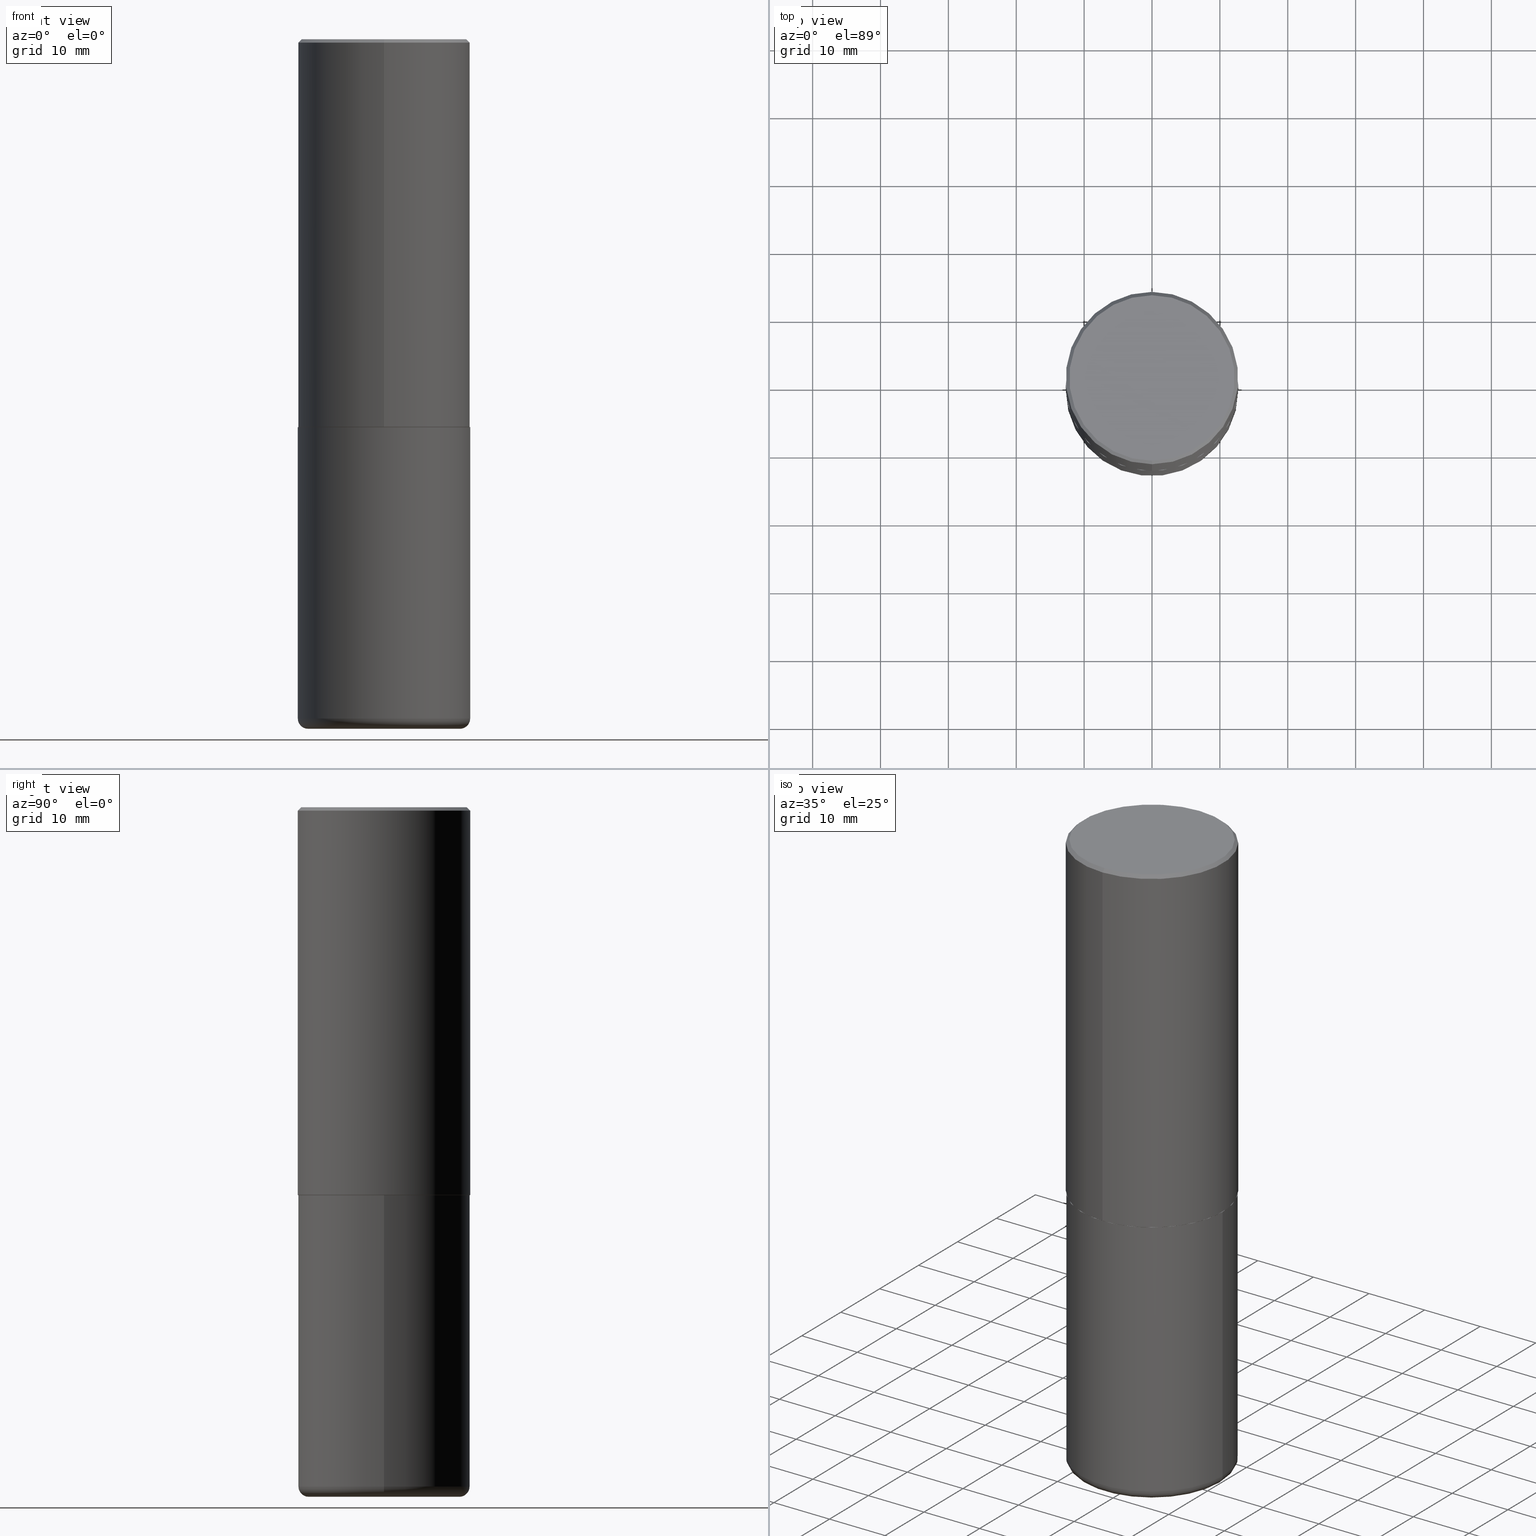
[diagram: canonical four-view strip — front | top / right | iso, engineering-drawing reading convention]
A machine part, canonical four-view strip (front | top / right | iso — engineering-drawing reading convention). The complete STEP part file that produces these views, byte-faithful:
ISO-10303-21;
HEADER;
FILE_DESCRIPTION (( 'STEP AP203' ),
    '1' );
FILE_NAME ('36130.STEP',
    '2024-03-01T15:53:04',
    ( '' ),
    ( '' ),
    'SwSTEP 2.0',
    'SolidWorks 2023',
    '' );
FILE_SCHEMA (( 'CONFIG_CONTROL_DESIGN' ));
ENDSEC;

DATA;
#1 = COORDINATED_UNIVERSAL_TIME_OFFSET ( 5, 0, .BEHIND. ) ;
#2 = CC_DESIGN_PERSON_AND_ORGANIZATION_ASSIGNMENT ( #166, #103, ( #148 ) ) ;
#3 = ORIENTED_EDGE ( 'NONE', *, *, #16, .F. ) ;
#4 = CC_DESIGN_APPROVAL ( #345, ( #27 ) ) ;
#5 = DATE_AND_TIME ( #354, #327 ) ;
#6 = PERSON_AND_ORGANIZATION ( #117, #323 ) ;
#7 = ORIENTED_EDGE ( 'NONE', *, *, #138, .T. ) ;
#8 = CIRCLE ( 'NONE', #100, 0.5000000000000000000 ) ;
#9 = UNCERTAINTY_MEASURE_WITH_UNIT (LENGTH_MEASURE( 1.000000000000000082E-05 ), #35, 'distance_accuracy_value', 'NONE');
#10 = PRODUCT_DEFINITION_FORMATION_WITH_SPECIFIED_SOURCE ( 'ANY', '', #388, .NOT_KNOWN. ) ;
#11 = DIRECTION ( 'NONE',  ( -2.445468806185136877E-29, 3.491481338843145188E-15, 1.000000000000000000 ) ) ;
#12 = VECTOR ( 'NONE', #98, 39.37007874015748143 ) ;
#13 = CARTESIAN_POINT ( 'NONE',  ( 3.549160965121755646E-15, 0.4989999999999921165, -2.250000000000001776 ) ) ;
#14 = FACE_OUTER_BOUND ( 'NONE', #151, .T. ) ;
#15 = ORIENTED_EDGE ( 'NONE', *, *, #16, .T. ) ;
#16 = EDGE_CURVE ( 'NONE', #382, #26, #285, .T. ) ;
#17 = CARTESIAN_POINT ( 'NONE',  ( -0.5000000000000000000, -1.020372279624149466E-14, -3.939999999999999947 ) ) ;
#18 = CARTESIAN_POINT ( 'NONE',  ( -3.430248998885764992E-15, -0.5000000000000001110, -0.01999999999999835937 ) ) ;
#19 = LINE ( 'NONE', #122, #230 ) ;
#20 = ORIENTED_EDGE ( 'NONE', *, *, #288, .T. ) ;
#21 = DIRECTION ( 'NONE',  ( -4.851104656540961119E-15, -0.7071067811865495711, -0.7071067811865454633 ) ) ;
#22 = ORIENTED_EDGE ( 'NONE', *, *, #277, .F. ) ;
#23 = DIRECTION ( 'NONE',  ( -2.446529474774470711E-29, 3.489962401053712253E-15, 1.000000000000000000 ) ) ;
#24 = PERSON_AND_ORGANIZATION ( #117, #323 ) ;
#25 = DIRECTION ( 'NONE',  ( -2.445468806185136597E-29, 3.491481338843145583E-15, 1.000000000000000000 ) ) ;
#26 = VERTEX_POINT ( 'NONE', #57 ) ;
#27 = SECURITY_CLASSIFICATION ( '', '', #190 ) ;
#28 = SHAPE_DEFINITION_REPRESENTATION ( #34, #284 ) ;
#29 = CARTESIAN_POINT ( 'NONE',  ( 3.552713678800501718E-15, 0.5000000000000001110, -1.744981200526856521E-15 ) ) ;
#30 = FACE_OUTER_BOUND ( 'NONE', #306, .T. ) ;
#31 = EDGE_CURVE ( 'NONE', #26, #382, #252, .T. ) ;
#32 = PERSON_AND_ORGANIZATION ( #117, #323 ) ;
#33 = PLANE ( 'NONE',  #202 ) ;
#34 = PRODUCT_DEFINITION_SHAPE ( 'NONE', 'NONE',  #148 ) ;
#35 =( CONVERSION_BASED_UNIT ( 'INCH', #221 ) LENGTH_UNIT ( ) NAMED_UNIT ( #53 ) );
#36 = VERTEX_POINT ( 'NONE', #273 ) ;
#37 = CONICAL_SURFACE ( 'NONE', #180, 0.4989999999999999991, 0.7853981633975507526 ) ;
#38 = DATE_AND_TIME ( #195, #142 ) ;
#39 = AXIS2_PLACEMENT_3D ( 'NONE', #203, #407, #397 ) ;
#40 = EDGE_CURVE ( 'NONE', #174, #289, #52, .T. ) ;
#41 = ORIENTED_EDGE ( 'NONE', *, *, #138, .F. ) ;
#42 = AXIS2_PLACEMENT_3D ( 'NONE', #247, #69, #244 ) ;
#43 = EDGE_CURVE ( 'NONE', #369, #340, #290, .T. ) ;
#44 = DIRECTION ( 'NONE',  ( -6.982962677686266711E-15, -1.000000000000000000, 3.278217592397114284E-15 ) ) ;
#45 = EDGE_LOOP ( 'NONE', ( #415, #283, #410, #186 ) ) ;
#46 = LINE ( 'NONE', #227, #199 ) ;
#47 = AXIS2_PLACEMENT_3D ( 'NONE', #112, #362, #173 ) ;
#48 = ADVANCED_FACE ( 'NONE', ( #155 ), #37, .T. ) ;
#49 = CARTESIAN_POINT ( 'NONE',  ( 3.421651712066269268E-15, 0.4799999999999996492, -1.428337318218884943E-15 ) ) ;
#50 = DIRECTION ( 'NONE',  ( 2.438088387897960049E-29, -3.491481338843145188E-15, -1.000000000000000000 ) ) ;
#51 = DIRECTION ( 'NONE',  ( 2.446529474774470711E-29, -3.489962401053712253E-15, -1.000000000000000000 ) ) ;
#52 = CIRCLE ( 'NONE', #107, 0.05999999999999997696 ) ;
#53 = DIMENSIONAL_EXPONENTS ( 1.000000000000000000, 0.000000000000000000, 0.000000000000000000, 0.000000000000000000, 0.000000000000000000, 0.000000000000000000, 0.000000000000000000 ) ;
#54 = CARTESIAN_POINT ( 'NONE',  ( -6.039126734728155395E-45, 8.614784925631203934E-31, 2.468446342868958109E-16 ) ) ;
#55 = ADVANCED_FACE ( 'NONE', ( #191 ), #386, .T. ) ;
#56 = ORIENTED_EDGE ( 'NONE', *, *, #395, .T. ) ;
#57 = CARTESIAN_POINT ( 'NONE',  ( -3.484498376165391726E-15, -0.4990000000000078262, -2.249999999999998224 ) ) ;
#58 = APPLICATION_CONTEXT ( 'configuration controlled 3d designs of mechanical parts and assemblies' ) ;
#59 = DIRECTION ( 'NONE',  ( -6.982962677686265922E-15, -1.000000000000000000, 3.284787166730577015E-15 ) ) ;
#60 = DATE_TIME_ROLE ( 'classification_date' ) ;
#61 = DIRECTION ( 'NONE',  ( -4.937700262165053702E-15, -0.7071067811866175168, 0.7071067811864775177 ) ) ;
#62 = ORIENTED_EDGE ( 'NONE', *, *, #246, .F. ) ;
#63 = EDGE_CURVE ( 'NONE', #120, #78, #403, .T. ) ;
#64 = CLOSED_SHELL ( 'NONE', ( #412, #198, #204, #330, #343, #387 ) ) ;
#65 = PERSON_AND_ORGANIZATION ( #117, #323 ) ;
#66 = FACE_OUTER_BOUND ( 'NONE', #211, .T. ) ;
#67 = DIRECTION ( 'NONE',  ( 2.446529474774470711E-29, -3.489962401053712253E-15, -1.000000000000000000 ) ) ;
#68 = APPLICATION_PROTOCOL_DEFINITION ( 'international standard', 'config_control_design', 1994, #58 ) ;
#69 = DIRECTION ( 'NONE',  ( -2.446529474774470711E-29, 3.489962401053712253E-15, 1.000000000000000000 ) ) ;
#70 = PERSON_AND_ORGANIZATION_ROLE ( 'design_supplier' ) ;
#71 = CC_DESIGN_APPROVAL ( #390, ( #10 ) ) ;
#72 = CIRCLE ( 'NONE', #373, 0.4400000000000000022 ) ;
#73 = ORIENTED_EDGE ( 'NONE', *, *, #229, .T. ) ;
#74 = EDGE_LOOP ( 'NONE', ( #235, #352, #20, #62 ) ) ;
#75 = APPROVAL ( #281, 'UNSPECIFIED' ) ;
#76 = AXIS2_PLACEMENT_3D ( 'NONE', #404, #231, #368 ) ;
#77 = VECTOR ( 'NONE', #254, 39.37007874015748143 ) ;
#78 = VERTEX_POINT ( 'NONE', #319 ) ;
#79 = ORIENTED_EDGE ( 'NONE', *, *, #395, .F. ) ;
#80 = DIRECTION ( 'NONE',  ( -2.445468806185136597E-29, 3.491481338843145583E-15, 1.000000000000000000 ) ) ;
#81 = AXIS2_PLACEMENT_3D ( 'NONE', #160, #67, #194 ) ;
#82 = CARTESIAN_POINT ( 'NONE',  ( -3.361644018908048478E-15, -0.4799999999999996492, 1.922026586792676170E-15 ) ) ;
#83 = DIRECTION ( 'NONE',  ( -2.445468806185136597E-29, 3.491481338843145583E-15, 1.000000000000000000 ) ) ;
#84 = ORIENTED_EDGE ( 'NONE', *, *, #31, .T. ) ;
#85 = PRODUCT_RELATED_PRODUCT_CATEGORY ( 'detail', '', ( #388 ) ) ;
#86 = DIRECTION ( 'NONE',  ( -6.982962677686266711E-15, -1.000000000000000000, 3.491481338843145583E-15 ) ) ;
#87 = DIRECTION ( 'NONE',  ( -2.446529474774470711E-29, 3.489962401053712253E-15, 1.000000000000000000 ) ) ;
#88 = ORIENTED_EDGE ( 'NONE', *, *, #258, .F. ) ;
#89 = CARTESIAN_POINT ( 'NONE',  ( 5.504691318242558820E-29, -7.852415402370853556E-15, -2.250000000000000000 ) ) ;
#90 = AXIS2_PLACEMENT_3D ( 'NONE', #347, #377, #409 ) ;
#91 = DIRECTION ( 'NONE',  ( 4.937700262164544887E-15, 0.7071067811865446862, -0.7071067811865503483 ) ) ;
#92 = DIRECTION ( 'NONE',  ( -1.000000000000000000, 6.982962677686265922E-15, -4.876176775795935793E-29 ) ) ;
#93 = ORIENTED_EDGE ( 'NONE', *, *, #326, .T. ) ;
#94 = PERSON_AND_ORGANIZATION ( #117, #323 ) ;
#95 = CARTESIAN_POINT ( 'NONE',  ( 4.893058949548968117E-31, -6.979924802107460893E-17, -0.02000000000000010797 ) ) ;
#96 = ADVANCED_FACE ( 'NONE', ( #30 ), #109, .T. ) ;
#97 = DIRECTION ( 'NONE',  ( -2.446529474774470711E-29, 3.489962401053712253E-15, 1.000000000000000000 ) ) ;
#98 = DIRECTION ( 'NONE',  ( -2.446529474774470711E-29, 3.489962401053712253E-15, 1.000000000000000000 ) ) ;
#99 = ORIENTED_EDGE ( 'NONE', *, *, #375, .T. ) ;
#100 = AXIS2_PLACEMENT_3D ( 'NONE', #299, #366, #232 ) ;
#101 = MECHANICAL_CONTEXT ( 'NONE', #408, 'mechanical' ) ;
#102 = CARTESIAN_POINT ( 'NONE',  ( 9.781875224740546387E-29, -1.396592535537258233E-14, -4.000000000000000000 ) ) ;
#103 = PERSON_AND_ORGANIZATION_ROLE ( 'creator' ) ;
#104 = ORIENTED_EDGE ( 'NONE', *, *, #43, .F. ) ;
#105 = EDGE_CURVE ( 'NONE', #382, #120, #321, .T. ) ;
#106 = CALENDAR_DATE ( 2024, 1, 3 ) ;
#107 = AXIS2_PLACEMENT_3D ( 'NONE', #133, #251, #121 ) ;
#108 = CIRCLE ( 'NONE', #39, 0.4400000000000000022 ) ;
#109 = CONICAL_SURFACE ( 'NONE', #81, 0.5000000000000000000, 0.7853981633974477239 ) ;
#110 = AXIS2_PLACEMENT_3D ( 'NONE', #185, #80, #333 ) ;
#111 = CARTESIAN_POINT ( 'NONE',  ( 5.502244788767783920E-29, -7.848925439969798022E-15, -2.249000000000000110 ) ) ;
#112 = CARTESIAN_POINT ( 'NONE',  ( 5.504691318242558820E-29, -7.852415402370853556E-15, -2.250000000000000000 ) ) ;
#113 = DIRECTION ( 'NONE',  ( 6.982962677686265922E-15, 1.000000000000000000, -3.491643216902136408E-15 ) ) ;
#114 = FACE_OUTER_BOUND ( 'NONE', #263, .T. ) ;
#115 = CIRCLE ( 'NONE', #240, 0.5000000000000000000 ) ;
#116 = EDGE_CURVE ( 'NONE', #241, #200, #8, .T. ) ;
#117 = PERSON ( 'UNSPECIFIED', 'UNSPECIFIED', 'UNSPECIFIED', ('UNSPECIFIED'), ('UNSPECIFIED'), ('UNSPECIFIED') ) ;
#118 = FACE_OUTER_BOUND ( 'NONE', #45, .T. ) ;
#119 = FACE_OUTER_BOUND ( 'NONE', #183, .T. ) ;
#120 = VERTEX_POINT ( 'NONE', #401 ) ;
#121 = DIRECTION ( 'NONE',  ( -1.000000000000000000, 7.105427357600993970E-15, 0.000000000000000000 ) ) ;
#122 = CARTESIAN_POINT ( 'NONE',  ( 3.491481338843133355E-15, 0.4999999999999999445, -0.02000000000000185310 ) ) ;
#123 =( GEOMETRIC_REPRESENTATION_CONTEXT ( 3 ) GLOBAL_UNCERTAINTY_ASSIGNED_CONTEXT ( ( #9 ) ) GLOBAL_UNIT_ASSIGNED_CONTEXT ( ( #35, #278, #308 ) ) REPRESENTATION_CONTEXT ( 'NONE', 'WORKASPACE' ) );
#124 = DIRECTION ( 'NONE',  ( -6.982962677686266711E-15, -1.000000000000000000, 3.278217592397114284E-15 ) ) ;
#125 = CONICAL_SURFACE ( 'NONE', #357, 0.5000000000000000000, 0.7853981633974477239 ) ;
#126 = EDGE_CURVE ( 'NONE', #215, #36, #115, .T. ) ;
#127 = DIRECTION ( 'NONE',  ( 0.000000000000000000, 0.000000000000000000, 1.000000000000000000 ) ) ;
#128 = ORIENTED_EDGE ( 'NONE', *, *, #246, .T. ) ;
#129 = DIRECTION ( 'NONE',  ( 1.000000000000000000, 0.000000000000000000, 0.000000000000000000 ) ) ;
#130 = LINE ( 'NONE', #336, #141 ) ;
#131 = APPROVAL_ROLE ( '' ) ;
#132 = CARTESIAN_POINT ( 'NONE',  ( 5.504691318242558820E-29, -7.852415402370853556E-15, -2.250000000000000000 ) ) ;
#133 = CARTESIAN_POINT ( 'NONE',  ( -0.4400000000000000022, -1.063004843769755357E-14, -3.939999999999999947 ) ) ;
#134 = CIRCLE ( 'NONE', #296, 0.5000000000000000000 ) ;
#135 = APPROVAL_STATUS ( 'not_yet_approved' ) ;
#136 = ORIENTED_EDGE ( 'NONE', *, *, #192, .T. ) ;
#137 = AXIS2_PLACEMENT_3D ( 'NONE', #189, #23, #310 ) ;
#138 = EDGE_CURVE ( 'NONE', #78, #120, #393, .T. ) ;
#139 = CARTESIAN_POINT ( 'NONE',  ( 5.502304813916557343E-29, -7.855833012397078448E-15, -2.250000000000000000 ) ) ;
#140 = AXIS2_PLACEMENT_3D ( 'NONE', #370, #238, #265 ) ;
#141 = VECTOR ( 'NONE', #350, 39.37007874015748143 ) ;
#142 = LOCAL_TIME ( 10, 53, 4.000000000000000000, #383 ) ;
#143 = EDGE_LOOP ( 'NONE', ( #222, #56, #363, #298 ) ) ;
#144 = DIRECTION ( 'NONE',  ( -6.982962677686265922E-15, -1.000000000000000000, 3.489962401053711859E-15 ) ) ;
#145 = PLANE ( 'NONE',  #170 ) ;
#146 = DIRECTION ( 'NONE',  ( -2.446529474774470711E-29, 3.489962401053712253E-15, 1.000000000000000000 ) ) ;
#147 = CYLINDRICAL_SURFACE ( 'NONE', #76, 0.5000000000000000000 ) ;
#148 = PRODUCT_DEFINITION ( 'UNKNOWN', '', #10, #233 ) ;
#149 = CYLINDRICAL_SURFACE ( 'NONE', #110, 0.5000000000000000000 ) ;
#150 = LINE ( 'NONE', #29, #12 ) ;
#151 = EDGE_LOOP ( 'NONE', ( #154, #93 ) ) ;
#152 = FACE_OUTER_BOUND ( 'NONE', #162, .T. ) ;
#153 = FACE_OUTER_BOUND ( 'NONE', #360, .T. ) ;
#154 = ORIENTED_EDGE ( 'NONE', *, *, #43, .T. ) ;
#155 = FACE_OUTER_BOUND ( 'NONE', #353, .T. ) ;
#156 = PERSON_AND_ORGANIZATION_ROLE ( 'classification_officer' ) ;
#157 = CARTESIAN_POINT ( 'NONE',  ( -3.430248998885764992E-15, -0.5000000000000001110, -0.01999999999999835937 ) ) ;
#158 = ORIENTED_EDGE ( 'NONE', *, *, #105, .T. ) ;
#159 = DIRECTION ( 'NONE',  ( 2.446529474774470431E-29, -3.489962401053712253E-15, -1.000000000000000000 ) ) ;
#160 = CARTESIAN_POINT ( 'NONE',  ( 4.893058949548968117E-31, -6.979924802107460893E-17, -0.02000000000000010797 ) ) ;
#161 = CARTESIAN_POINT ( 'NONE',  ( -3.484498376165391726E-15, -0.4990000000000078262, -2.249999999999998224 ) ) ;
#162 = EDGE_LOOP ( 'NONE', ( #168, #396, #88, #268 ) ) ;
#163 = AXIS2_PLACEMENT_3D ( 'NONE', #205, #364, #335 ) ;
#164 = CC_DESIGN_SECURITY_CLASSIFICATION ( #27, ( #10 ) ) ;
#165 = CC_DESIGN_DATE_AND_TIME_ASSIGNMENT ( #416, #216, ( #148 ) ) ;
#166 = PERSON_AND_ORGANIZATION ( #117, #323 ) ;
#167 = DIRECTION ( 'NONE',  ( -2.445468806185136597E-29, 3.491481338843145583E-15, 1.000000000000000000 ) ) ;
#168 = ORIENTED_EDGE ( 'NONE', *, *, #358, .T. ) ;
#169 = EDGE_CURVE ( 'NONE', #289, #215, #302, .T. ) ;
#170 = AXIS2_PLACEMENT_3D ( 'NONE', #398, #159, #243 ) ;
#171 = ADVANCED_FACE ( 'NONE', ( #260 ), #304, .T. ) ;
#172 = AXIS2_PLACEMENT_3D ( 'NONE', #54, #178, #144 ) ;
#173 = DIRECTION ( 'NONE',  ( -6.982962677686265922E-15, -1.000000000000000000, 3.284787166730577015E-15 ) ) ;
#174 = VERTEX_POINT ( 'NONE', #297 ) ;
#175 = ADVANCED_FACE ( 'NONE', ( #14 ), #145, .F. ) ;
#176 = DIRECTION ( 'NONE',  ( -6.982962677686265922E-15, -1.000000000000000000, 3.489962401053712253E-15 ) ) ;
#177 = VECTOR ( 'NONE', #21, 39.37007874015748143 ) ;
#178 = DIRECTION ( 'NONE',  ( -2.446529474774470711E-29, 3.489962401053712253E-15, 1.000000000000000000 ) ) ;
#179 = PLANE ( 'NONE',  #332 ) ;
#180 = AXIS2_PLACEMENT_3D ( 'NONE', #218, #97, #348 ) ;
#181 = PLANE ( 'NONE',  #355 ) ;
#182 = CARTESIAN_POINT ( 'NONE',  ( 3.491481338843133355E-15, 0.4999999999999999445, -0.02000000000000185310 ) ) ;
#183 = EDGE_LOOP ( 'NONE', ( #214, #359 ) ) ;
#184 = CARTESIAN_POINT ( 'NONE',  ( 5.504691318242558820E-29, -7.852415402370853556E-15, -2.250000000000000000 ) ) ;
#185 = CARTESIAN_POINT ( 'NONE',  ( 0.000000000000000000, 0.000000000000000000, 0.000000000000000000 ) ) ;
#186 = ORIENTED_EDGE ( 'NONE', *, *, #126, .F. ) ;
#187 = CARTESIAN_POINT ( 'NONE',  ( 0.000000000000000000, 0.000000000000000000, 0.000000000000000000 ) ) ;
#188 = LOCAL_TIME ( 10, 53, 4.000000000000000000, #1 ) ;
#189 = CARTESIAN_POINT ( 'NONE',  ( -6.039126734728155395E-45, 8.614784925631203934E-31, 2.468446342868958109E-16 ) ) ;
#190 = SECURITY_CLASSIFICATION_LEVEL ( 'unclassified' ) ;
#191 = FACE_OUTER_BOUND ( 'NONE', #394, .T. ) ;
#192 = EDGE_CURVE ( 'NONE', #120, #200, #150, .T. ) ;
#193 = COORDINATED_UNIVERSAL_TIME_OFFSET ( 5, 0, .BEHIND. ) ;
#194 = DIRECTION ( 'NONE',  ( 6.982962677686265922E-15, 1.000000000000000000, -3.491643216902136408E-15 ) ) ;
#195 = CALENDAR_DATE ( 2024, 1, 3 ) ;
#196 = APPROVAL_PERSON_ORGANIZATION ( #24, #75, #324 ) ;
#197 = AXIS2_PLACEMENT_3D ( 'NONE', #339, #146, #176 ) ;
#198 = ADVANCED_FACE ( 'NONE', ( #153 ), #328, .T. ) ;
#199 = VECTOR ( 'NONE', #87, 39.37007874015748143 ) ;
#200 = VERTEX_POINT ( 'NONE', #182 ) ;
#201 = AXIS2_PLACEMENT_3D ( 'NONE', #187, #127, #129 ) ;
#202 = AXIS2_PLACEMENT_3D ( 'NONE', #132, #250, #384 ) ;
#203 = CARTESIAN_POINT ( 'NONE',  ( 9.781875224740546387E-29, -1.396592535537258233E-14, -4.000000000000000000 ) ) ;
#204 = ADVANCED_FACE ( 'NONE', ( #119 ), #179, .F. ) ;
#205 = CARTESIAN_POINT ( 'NONE',  ( 9.635147096369438236E-29, -1.375643647504199401E-14, -3.939999999999999947 ) ) ;
#206 = DIRECTION ( 'NONE',  ( -2.446529474774470711E-29, 3.489962401053712253E-15, 1.000000000000000000 ) ) ;
#207 = EDGE_LOOP ( 'NONE', ( #236, #15, #73, #405 ) ) ;
#208 = ORIENTED_EDGE ( 'NONE', *, *, #116, .F. ) ;
#209 = FACE_OUTER_BOUND ( 'NONE', #143, .T. ) ;
#210 = AXIS2_PLACEMENT_3D ( 'NONE', #111, #206, #44 ) ;
#211 = EDGE_LOOP ( 'NONE', ( #266, #3 ) ) ;
#212 = DIRECTION ( 'NONE',  ( -2.446529474774470711E-29, 3.489962401053712253E-15, 1.000000000000000000 ) ) ;
#213 = CARTESIAN_POINT ( 'NONE',  ( 0.4400000000000000022, -1.703842893355454063E-14, -4.000000000000000000 ) ) ;
#214 = ORIENTED_EDGE ( 'NONE', *, *, #258, .T. ) ;
#215 = VERTEX_POINT ( 'NONE', #342 ) ;
#216 = DATE_TIME_ROLE ( 'creation_date' ) ;
#217 = DIRECTION ( 'NONE',  ( -6.982962677686265922E-15, -1.000000000000000000, 3.491643216902136408E-15 ) ) ;
#218 = CARTESIAN_POINT ( 'NONE',  ( 5.504691318242558820E-29, -7.852415402370853556E-15, -2.250000000000000000 ) ) ;
#219 = CIRCLE ( 'NONE', #315, 0.5000000000000000000 ) ;
#220 = CC_DESIGN_PERSON_AND_ORGANIZATION_ASSIGNMENT ( #287, #346, ( #388 ) ) ;
#221 = LENGTH_MEASURE_WITH_UNIT ( LENGTH_MEASURE( 0.02539999999999999897 ), #234 );
#222 = ORIENTED_EDGE ( 'NONE', *, *, #326, .F. ) ;
#223 = APPLICATION_PROTOCOL_DEFINITION ( 'international standard', 'config_control_design', 1994, #408 ) ;
#224 = CC_DESIGN_APPROVAL ( #75, ( #148 ) ) ;
#225 = AXIS2_PLACEMENT_3D ( 'NONE', #89, #406, #307 ) ;
#226 = CIRCLE ( 'NONE', #172, 0.4799999999999996492 ) ;
#227 = CARTESIAN_POINT ( 'NONE',  ( -3.491481338843133750E-15, -0.5000000000000001110, 1.744981200526856521E-15 ) ) ;
#228 = FACE_OUTER_BOUND ( 'NONE', #74, .T. ) ;
#229 = EDGE_CURVE ( 'NONE', #26, #78, #309, .T. ) ;
#230 = VECTOR ( 'NONE', #91, 39.37007874015748143 ) ;
#231 = DIRECTION ( 'NONE',  ( -2.445468806185136597E-29, 3.491481338843145583E-15, 1.000000000000000000 ) ) ;
#232 = DIRECTION ( 'NONE',  ( -6.982962677686265922E-15, -1.000000000000000000, 3.491643216902136408E-15 ) ) ;
#233 = DESIGN_CONTEXT ( 'detailed design', #58, 'design' ) ;
#234 =( LENGTH_UNIT ( ) NAMED_UNIT ( * ) SI_UNIT ( $, .METRE. ) );
#235 = ORIENTED_EDGE ( 'NONE', *, *, #192, .F. ) ;
#236 = ORIENTED_EDGE ( 'NONE', *, *, #105, .F. ) ;
#237 = EDGE_CURVE ( 'NONE', #289, #378, #257, .T. ) ;
#238 = DIRECTION ( 'NONE',  ( -2.445468806185136597E-29, 3.491481338843145583E-15, 1.000000000000000000 ) ) ;
#239 = DIRECTION ( 'NONE',  ( 2.438088387897960049E-29, -3.491481338843145188E-15, -1.000000000000000000 ) ) ;
#240 = AXIS2_PLACEMENT_3D ( 'NONE', #139, #83, #392 ) ;
#241 = VERTEX_POINT ( 'NONE', #157 ) ;
#242 = DATE_AND_TIME ( #253, #248 ) ;
#243 = DIRECTION ( 'NONE',  ( 6.982962677686265922E-15, 1.000000000000000000, -3.489962401053712253E-15 ) ) ;
#244 = DIRECTION ( 'NONE',  ( -6.982962677686265922E-15, -1.000000000000000000, 3.489962401053712253E-15 ) ) ;
#245 = CALENDAR_DATE ( 2024, 1, 3 ) ;
#246 = EDGE_CURVE ( 'NONE', #200, #241, #134, .T. ) ;
#247 = CARTESIAN_POINT ( 'NONE',  ( 0.000000000000000000, 0.000000000000000000, 0.000000000000000000 ) ) ;
#248 = LOCAL_TIME ( 10, 53, 4.000000000000000000, #193 ) ;
#249 = COORDINATED_UNIVERSAL_TIME_OFFSET ( 5, 0, .BEHIND. ) ;
#250 = DIRECTION ( 'NONE',  ( -2.446529474774470431E-29, 3.489962401053712253E-15, 1.000000000000000000 ) ) ;
#251 = DIRECTION ( 'NONE',  ( 7.105427357601001859E-15, 1.000000000000000000, -3.491481338843145583E-15 ) ) ;
#252 = CIRCLE ( 'NONE', #225, 0.4989999999999999991 ) ;
#253 = CALENDAR_DATE ( 2024, 1, 3 ) ;
#254 = DIRECTION ( 'NONE',  ( 5.024295867788576727E-15, 0.7071067811866224018, 0.7071067811864726327 ) ) ;
#255 = APPROVAL_STATUS ( 'not_yet_approved' ) ;
#256 = CC_DESIGN_PERSON_AND_ORGANIZATION_ASSIGNMENT ( #32, #156, ( #27 ) ) ;
#257 = CIRCLE ( 'NONE', #325, 0.5000000000000000000 ) ;
#258 = EDGE_CURVE ( 'NONE', #36, #215, #219, .T. ) ;
#259 = LOCAL_TIME ( 10, 53, 4.000000000000000000, #314 ) ;
#260 = FACE_OUTER_BOUND ( 'NONE', #207, .T. ) ;
#261 = EDGE_CURVE ( 'NONE', #378, #36, #130, .T. ) ;
#262 = CARTESIAN_POINT ( 'NONE',  ( 0.4400000000000000022, -1.682894005322395074E-14, -3.939999999999999947 ) ) ;
#263 = EDGE_LOOP ( 'NONE', ( #372, #22 ) ) ;
#264 = CARTESIAN_POINT ( 'NONE',  ( 4.893058949548968117E-31, -6.979924802107460893E-17, -0.02000000000000010797 ) ) ;
#265 = DIRECTION ( 'NONE',  ( 1.000000000000000000, -6.982962677686266711E-15, 4.883557194083113462E-29 ) ) ;
#266 = ORIENTED_EDGE ( 'NONE', *, *, #31, .F. ) ;
#267 = ORIENTED_EDGE ( 'NONE', *, *, #367, .F. ) ;
#268 = ORIENTED_EDGE ( 'NONE', *, *, #261, .F. ) ;
#269 = ADVANCED_FACE ( 'NONE', ( #66 ), #33, .F. ) ;
#270 = FACE_OUTER_BOUND ( 'NONE', #341, .T. ) ;
#271 = CARTESIAN_POINT ( 'NONE',  ( 5.502304813916557343E-29, -7.855833012397078448E-15, -2.250000000000000000 ) ) ;
#272 = ORIENTED_EDGE ( 'NONE', *, *, #367, .T. ) ;
#273 = CARTESIAN_POINT ( 'NONE',  ( 0.5000000000000000000, -1.134731435124021180E-14, -2.250000000000000000 ) ) ;
#274 = CARTESIAN_POINT ( 'NONE',  ( 5.502304813916557343E-29, -7.855833012397078448E-15, -2.250000000000000000 ) ) ;
#275 = AXIS2_PLACEMENT_3D ( 'NONE', #184, #212, #59 ) ;
#276 = ORIENTED_EDGE ( 'NONE', *, *, #277, .T. ) ;
#277 = EDGE_CURVE ( 'NONE', #174, #418, #72, .T. ) ;
#278 =( NAMED_UNIT ( * ) PLANE_ANGLE_UNIT ( ) SI_UNIT ( $, .RADIAN. ) );
#279 = DIRECTION ( 'NONE',  ( -2.446529474774470711E-29, 3.489962401053712253E-15, 1.000000000000000000 ) ) ;
#280 = ORIENTED_EDGE ( 'NONE', *, *, #237, .F. ) ;
#281 = APPROVAL_STATUS ( 'not_yet_approved' ) ;
#282 = CARTESIAN_POINT ( 'NONE',  ( 9.635147096369438236E-29, -1.375643647504199401E-14, -3.939999999999999947 ) ) ;
#283 = ORIENTED_EDGE ( 'NONE', *, *, #237, .T. ) ;
#284 = ADVANCED_BREP_SHAPE_REPRESENTATION ( '36130', ( #322, #316, #201 ), #123 ) ;
#285 = CIRCLE ( 'NONE', #275, 0.4989999999999999991 ) ;
#286 = AXIS2_PLACEMENT_3D ( 'NONE', #344, #317, #124 ) ;
#287 = PERSON_AND_ORGANIZATION ( #117, #323 ) ;
#288 = EDGE_CURVE ( 'NONE', #78, #241, #46, .T. ) ;
#289 = VERTEX_POINT ( 'NONE', #17 ) ;
#290 = CIRCLE ( 'NONE', #137, 0.4799999999999996492 ) ;
#291 = ADVANCED_FACE ( 'NONE', ( #228 ), #365, .T. ) ;
#292 = CARTESIAN_POINT ( 'NONE',  ( 3.545608251442954353E-15, 0.4989999999999921165, -2.250000000000001776 ) ) ;
#293 = CC_DESIGN_PERSON_AND_ORGANIZATION_ASSIGNMENT ( #65, #70, ( #10 ) ) ;
#294 = CARTESIAN_POINT ( 'NONE',  ( -0.5000000000000000000, 3.552713678800500929E-15, -2.459467545127452891E-29 ) ) ;
#295 = CIRCLE ( 'NONE', #303, 0.05999999999999997696 ) ;
#296 = AXIS2_PLACEMENT_3D ( 'NONE', #95, #279, #217 ) ;
#297 = CARTESIAN_POINT ( 'NONE',  ( -0.4400000000000000022, -1.052163005713481828E-14, -4.000000000000000000 ) ) ;
#298 = ORIENTED_EDGE ( 'NONE', *, *, #375, .F. ) ;
#299 = CARTESIAN_POINT ( 'NONE',  ( 4.893058949548968117E-31, -6.979924802107460893E-17, -0.02000000000000010797 ) ) ;
#300 = ORIENTED_EDGE ( 'NONE', *, *, #361, .T. ) ;
#301 = LINE ( 'NONE', #18, #177 ) ;
#302 = LINE ( 'NONE', #294, #351 ) ;
#303 = AXIS2_PLACEMENT_3D ( 'NONE', #262, #86, #376 ) ;
#304 = CONICAL_SURFACE ( 'NONE', #47, 0.4989999999999999991, 0.7853981633975507526 ) ;
#305 = DIRECTION ( 'NONE',  ( -1.000000000000000000, 6.982962677686265922E-15, -4.876176775795935793E-29 ) ) ;
#306 = EDGE_LOOP ( 'NONE', ( #79, #104, #99, #128 ) ) ;
#307 = DIRECTION ( 'NONE',  ( -6.982962677686265922E-15, -1.000000000000000000, 3.284787166730577015E-15 ) ) ;
#308 =( NAMED_UNIT ( * ) SI_UNIT ( $, .STERADIAN. ) SOLID_ANGLE_UNIT ( ) );
#309 = LINE ( 'NONE', #161, #385 ) ;
#310 = DIRECTION ( 'NONE',  ( -6.982962677686265922E-15, -1.000000000000000000, 3.489962401053711859E-15 ) ) ;
#311 = ADVANCED_FACE ( 'NONE', ( #209 ), #125, .T. ) ;
#312 = APPROVAL_PERSON_ORGANIZATION ( #6, #345, #389 ) ;
#313 = CC_DESIGN_DATE_AND_TIME_ASSIGNMENT ( #38, #60, ( #27 ) ) ;
#314 = COORDINATED_UNIVERSAL_TIME_OFFSET ( 5, 0, .BEHIND. ) ;
#315 = AXIS2_PLACEMENT_3D ( 'NONE', #274, #414, #417 ) ;
#316 = MANIFOLD_SOLID_BREP ( 'Body-Move/Copy2[2]', #337 ) ;
#317 = DIRECTION ( 'NONE',  ( -2.446529474774470711E-29, 3.489962401053712253E-15, 1.000000000000000000 ) ) ;
#318 = DATE_AND_TIME ( #106, #259 ) ;
#319 = CARTESIAN_POINT ( 'NONE',  ( -3.491481338843080107E-15, -0.5000000000000081046, -2.248999999999998334 ) ) ;
#320 = PERSON_AND_ORGANIZATION_ROLE ( 'creator' ) ;
#321 = LINE ( 'NONE', #292, #77 ) ;
#322 = MANIFOLD_SOLID_BREP ( 'Body-Move/Copy2[1]', #64 ) ;
#323 = ORGANIZATION ( 'UNSPECIFIED', 'UNSPECIFIED', '' ) ;
#324 = APPROVAL_ROLE ( '' ) ;
#325 = AXIS2_PLACEMENT_3D ( 'NONE', #282, #25, #380 ) ;
#326 = EDGE_CURVE ( 'NONE', #340, #369, #226, .T. ) ;
#327 = LOCAL_TIME ( 10, 53, 4.000000000000000000, #249 ) ;
#328 = TOROIDAL_SURFACE ( 'NONE', #90, 0.4400000000000000022, 0.05999999999999994227 ) ;
#329 = ORIENTED_EDGE ( 'NONE', *, *, #288, .F. ) ;
#330 = ADVANCED_FACE ( 'NONE', ( #118 ), #149, .T. ) ;
#331 = ORIENTED_EDGE ( 'NONE', *, *, #40, .F. ) ;
#332 = AXIS2_PLACEMENT_3D ( 'NONE', #271, #239, #92 ) ;
#333 = DIRECTION ( 'NONE',  ( 1.000000000000000000, -6.982962677686266711E-15, 4.876176775795935793E-29 ) ) ;
#334 = CARTESIAN_POINT ( 'NONE',  ( 9.781875224740546387E-29, -1.396592535537258233E-14, -4.000000000000000000 ) ) ;
#335 = DIRECTION ( 'NONE',  ( 1.000000000000000000, -6.982962677686266711E-15, 0.000000000000000000 ) ) ;
#336 = CARTESIAN_POINT ( 'NONE',  ( 0.5000000000000000000, -3.491481338843133355E-15, 2.438088387897967896E-29 ) ) ;
#337 = CLOSED_SHELL ( 'NONE', ( #48, #55, #311, #96, #291, #171, #269, #175 ) ) ;
#338 = APPROVAL_PERSON_ORGANIZATION ( #94, #390, #131 ) ;
#339 = CARTESIAN_POINT ( 'NONE',  ( 0.000000000000000000, 0.000000000000000000, 0.000000000000000000 ) ) ;
#340 = VERTEX_POINT ( 'NONE', #82 ) ;
#341 = EDGE_LOOP ( 'NONE', ( #331, #276, #272, #280 ) ) ;
#342 = CARTESIAN_POINT ( 'NONE',  ( -0.5000000000000000000, -7.253421064919035302E-15, -2.250000000000000000 ) ) ;
#343 = ADVANCED_FACE ( 'NONE', ( #270 ), #411, .T. ) ;
#344 = CARTESIAN_POINT ( 'NONE',  ( 5.502244788767783920E-29, -7.848925439969798022E-15, -2.249000000000000110 ) ) ;
#345 = APPROVAL ( #255, 'UNSPECIFIED' ) ;
#346 = PERSON_AND_ORGANIZATION_ROLE ( 'design_owner' ) ;
#347 = CARTESIAN_POINT ( 'NONE',  ( 9.635147096369438236E-29, -1.375643647504199401E-14, -3.939999999999999947 ) ) ;
#348 = DIRECTION ( 'NONE',  ( -6.982962677686265922E-15, -1.000000000000000000, 3.284787166730577015E-15 ) ) ;
#349 = PERSON_AND_ORGANIZATION ( #117, #323 ) ;
#350 = DIRECTION ( 'NONE',  ( -2.445468806185136877E-29, 3.491481338843145188E-15, 1.000000000000000000 ) ) ;
#351 = VECTOR ( 'NONE', #11, 39.37007874015748143 ) ;
#352 = ORIENTED_EDGE ( 'NONE', *, *, #63, .T. ) ;
#353 = EDGE_LOOP ( 'NONE', ( #84, #158, #41, #371 ) ) ;
#354 = CALENDAR_DATE ( 2024, 1, 3 ) ;
#355 = AXIS2_PLACEMENT_3D ( 'NONE', #334, #50, #305 ) ;
#356 = APPROVAL_DATE_TIME ( #318, #345 ) ;
#357 = AXIS2_PLACEMENT_3D ( 'NONE', #264, #51, #113 ) ;
#358 = EDGE_CURVE ( 'NONE', #378, #289, #374, .T. ) ;
#359 = ORIENTED_EDGE ( 'NONE', *, *, #126, .T. ) ;
#360 = EDGE_LOOP ( 'NONE', ( #300, #381, #399, #267 ) ) ;
#361 = EDGE_CURVE ( 'NONE', #418, #174, #108, .T. ) ;
#362 = DIRECTION ( 'NONE',  ( -2.446529474774470711E-29, 3.489962401053712253E-15, 1.000000000000000000 ) ) ;
#363 = ORIENTED_EDGE ( 'NONE', *, *, #116, .T. ) ;
#364 = DIRECTION ( 'NONE',  ( -2.445468806185136597E-29, 3.491481338843145583E-15, 1.000000000000000000 ) ) ;
#365 = CYLINDRICAL_SURFACE ( 'NONE', #197, 0.5000000000000001110 ) ;
#366 = DIRECTION ( 'NONE',  ( -2.446529474774470711E-29, 3.489962401053712253E-15, 1.000000000000000000 ) ) ;
#367 = EDGE_CURVE ( 'NONE', #418, #378, #295, .T. ) ;
#368 = DIRECTION ( 'NONE',  ( 1.000000000000000000, -6.982962677686266711E-15, 4.876176775795935793E-29 ) ) ;
#369 = VERTEX_POINT ( 'NONE', #49 ) ;
#370 = CARTESIAN_POINT ( 'NONE',  ( 9.635147096369438236E-29, -1.375643647504199401E-14, -3.939999999999999947 ) ) ;
#371 = ORIENTED_EDGE ( 'NONE', *, *, #229, .F. ) ;
#372 = ORIENTED_EDGE ( 'NONE', *, *, #361, .F. ) ;
#373 = AXIS2_PLACEMENT_3D ( 'NONE', #102, #167, #391 ) ;
#374 = CIRCLE ( 'NONE', #163, 0.5000000000000000000 ) ;
#375 = EDGE_CURVE ( 'NONE', #369, #200, #19, .T. ) ;
#376 = DIRECTION ( 'NONE',  ( 1.000000000000000000, -6.982962677686270655E-15, 0.000000000000000000 ) ) ;
#377 = DIRECTION ( 'NONE',  ( -2.445468806185136597E-29, 3.491481338843145583E-15, 1.000000000000000000 ) ) ;
#378 = VERTEX_POINT ( 'NONE', #400 ) ;
#379 = APPROVAL_DATE_TIME ( #242, #390 ) ;
#380 = DIRECTION ( 'NONE',  ( 1.000000000000000000, -6.982962677686266711E-15, 0.000000000000000000 ) ) ;
#381 = ORIENTED_EDGE ( 'NONE', *, *, #40, .T. ) ;
#382 = VERTEX_POINT ( 'NONE', #13 ) ;
#383 = COORDINATED_UNIVERSAL_TIME_OFFSET ( 5, 0, .BEHIND. ) ;
#384 = DIRECTION ( 'NONE',  ( -6.982962677686265922E-15, -1.000000000000000000, 3.489962401053712253E-15 ) ) ;
#385 = VECTOR ( 'NONE', #61, 39.37007874015748143 ) ;
#386 = CYLINDRICAL_SURFACE ( 'NONE', #42, 0.5000000000000001110 ) ;
#387 = ADVANCED_FACE ( 'NONE', ( #114 ), #181, .T. ) ;
#388 = PRODUCT ( '36130', '36130', '', ( #101 ) ) ;
#389 = APPROVAL_ROLE ( '' ) ;
#390 = APPROVAL ( #135, 'UNSPECIFIED' ) ;
#391 = DIRECTION ( 'NONE',  ( 1.000000000000000000, -6.982962677686266711E-15, 0.000000000000000000 ) ) ;
#392 = DIRECTION ( 'NONE',  ( 1.000000000000000000, -6.982962677686269077E-15, 0.000000000000000000 ) ) ;
#393 = CIRCLE ( 'NONE', #210, 0.5000000000000002220 ) ;
#394 = EDGE_LOOP ( 'NONE', ( #7, #136, #208, #329 ) ) ;
#395 = EDGE_CURVE ( 'NONE', #340, #241, #301, .T. ) ;
#396 = ORIENTED_EDGE ( 'NONE', *, *, #169, .T. ) ;
#397 = DIRECTION ( 'NONE',  ( 1.000000000000000000, -6.982962677686266711E-15, 0.000000000000000000 ) ) ;
#398 = CARTESIAN_POINT ( 'NONE',  ( 3.351822085289405181E-15, 0.4799999999999996492, -1.551759635362332947E-15 ) ) ;
#399 = ORIENTED_EDGE ( 'NONE', *, *, #358, .F. ) ;
#400 = CARTESIAN_POINT ( 'NONE',  ( 0.5000000000000000000, -1.724791781388512737E-14, -3.939999999999999947 ) ) ;
#401 = CARTESIAN_POINT ( 'NONE',  ( 3.552713678800530117E-15, 0.4999999999999925060, -2.249000000000001442 ) ) ;
#402 = CC_DESIGN_PERSON_AND_ORGANIZATION_ASSIGNMENT ( #349, #320, ( #10 ) ) ;
#403 = CIRCLE ( 'NONE', #286, 0.5000000000000002220 ) ;
#404 = CARTESIAN_POINT ( 'NONE',  ( 0.000000000000000000, 0.000000000000000000, 0.000000000000000000 ) ) ;
#405 = ORIENTED_EDGE ( 'NONE', *, *, #63, .F. ) ;
#406 = DIRECTION ( 'NONE',  ( -2.446529474774470711E-29, 3.489962401053712253E-15, 1.000000000000000000 ) ) ;
#407 = DIRECTION ( 'NONE',  ( -2.445468806185136597E-29, 3.491481338843145583E-15, 1.000000000000000000 ) ) ;
#408 = APPLICATION_CONTEXT ( 'configuration controlled 3d designs of mechanical parts and assemblies' ) ;
#409 = DIRECTION ( 'NONE',  ( 1.000000000000000000, -6.982962677686266711E-15, 4.883557194083113462E-29 ) ) ;
#410 = ORIENTED_EDGE ( 'NONE', *, *, #261, .T. ) ;
#411 = TOROIDAL_SURFACE ( 'NONE', #140, 0.4400000000000000022, 0.05999999999999994227 ) ;
#412 = ADVANCED_FACE ( 'NONE', ( #152 ), #147, .T. ) ;
#413 = APPROVAL_DATE_TIME ( #5, #75 ) ;
#414 = DIRECTION ( 'NONE',  ( -2.445468806185136597E-29, 3.491481338843145583E-15, 1.000000000000000000 ) ) ;
#415 = ORIENTED_EDGE ( 'NONE', *, *, #169, .F. ) ;
#416 = DATE_AND_TIME ( #245, #188 ) ;
#417 = DIRECTION ( 'NONE',  ( 1.000000000000000000, -6.982962677686269077E-15, 0.000000000000000000 ) ) ;
#418 = VERTEX_POINT ( 'NONE', #213 ) ;
ENDSEC;
END-ISO-10303-21;
